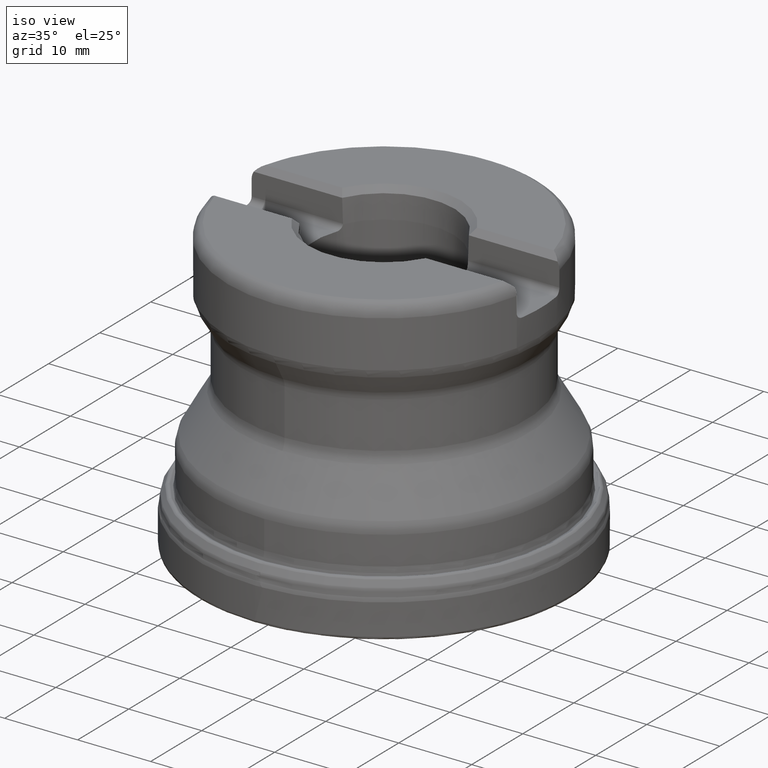
[diagram: clean part render]
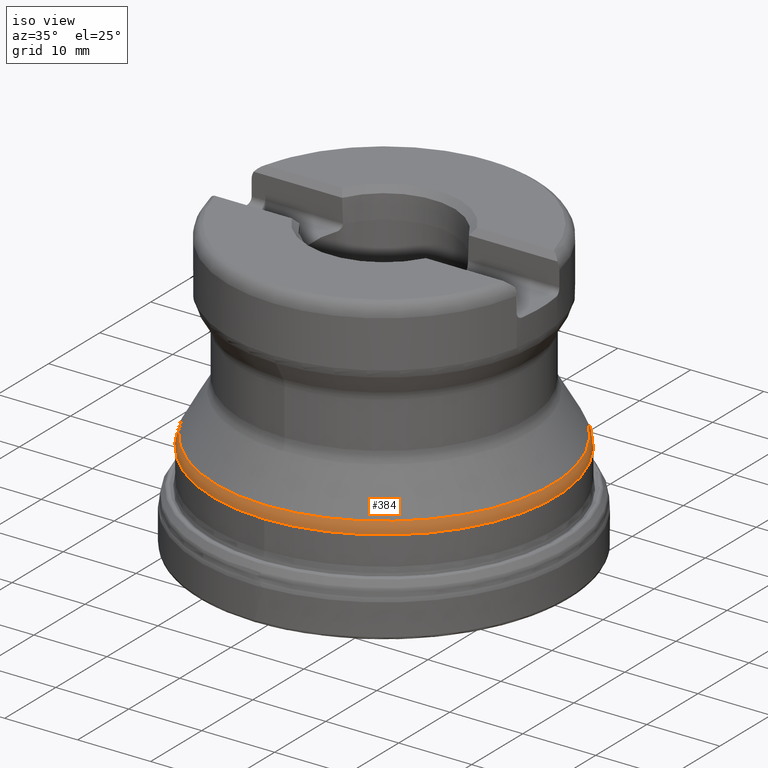
[diagram: same view with one face highlighted and labeled with its STEP entity id]
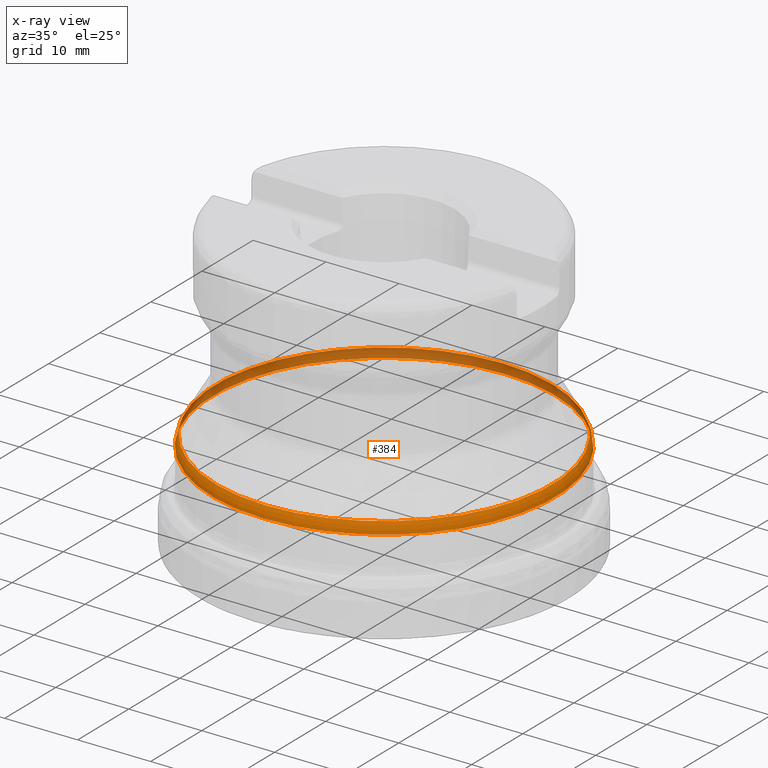
[diagram: x-ray of the same camera — body ghosted, the highlighted face saturated]
A machine part, iso view. The second image highlights one B-rep face of the part: STEP entity #384.
The next image is the same camera in x-ray: the body ghosted, the highlighted face saturated — about 38% of this face is hidden behind the body in this view.
In plain terms, the highlighted toroidal blend (fillet) surface has major radius 20.5 mm and minor (blend) radius 3 mm.
Its self-contained STEP definition (entity closure, byte-faithful):
#217=FACE_BOUND('',#529,.T.);
#218=FACE_BOUND('',#530,.T.);
#384=ADVANCED_FACE('',(#217,#218),#429,.T.);
#429=TOROIDAL_SURFACE('',#1245,20.5,3.);
#529=EDGE_LOOP('',(#735));
#530=EDGE_LOOP('',(#736));
#735=ORIENTED_EDGE('',*,*,#960,.F.);
#736=ORIENTED_EDGE('',*,*,#963,.F.);
#857=VERTEX_POINT('',#1969);
#860=VERTEX_POINT('',#1976);
#960=EDGE_CURVE('',#857,#857,#1045,.T.);
#963=EDGE_CURVE('',#860,#860,#1048,.T.);
#1045=CIRCLE('',#1189,23.5);
#1048=CIRCLE('',#1193,23.0980762113533);
#1189=AXIS2_PLACEMENT_3D('',#1968,#1359,#1360);
#1193=AXIS2_PLACEMENT_3D('',#1975,#1367,#1368);
#1245=AXIS2_PLACEMENT_3D('',#2185,#1475,#1476);
#1359=DIRECTION('',(0.,-1.17145536458252E-15,-1.));
#1360=DIRECTION('',(0.,1.,-1.18108832406932E-15));
#1367=DIRECTION('',(0.,1.17145536458252E-15,1.));
#1368=DIRECTION('',(0.,-1.,1.20164014360583E-15));
#1475=DIRECTION('',(0.,-1.17145536458252E-15,-1.));
#1476=DIRECTION('',(0.,1.,-1.18108832406932E-15));
#1968=CARTESIAN_POINT('',(0.,1.42872481828458E-14,12.1961524227066));
#1969=CARTESIAN_POINT('',(0.,23.5,12.1961524227066));
#1975=CARTESIAN_POINT('',(0.,1.60444312297196E-14,13.6961524227066));
#1976=CARTESIAN_POINT('',(0.,-23.0980762113533,13.6961524227067));
#2185=CARTESIAN_POINT('',(0.,1.42872481828458E-14,12.1961524227066));